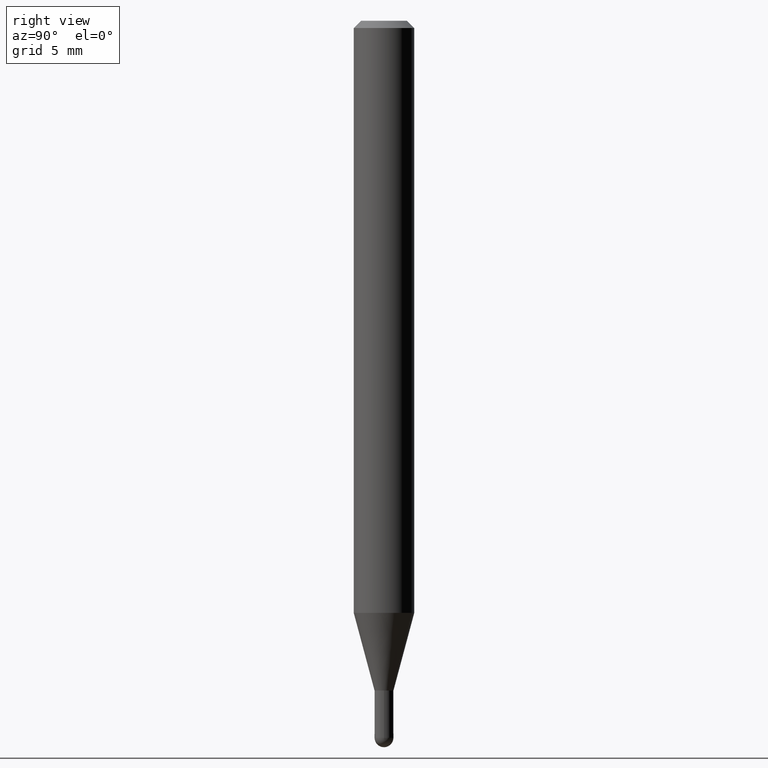
[diagram: clean part render]
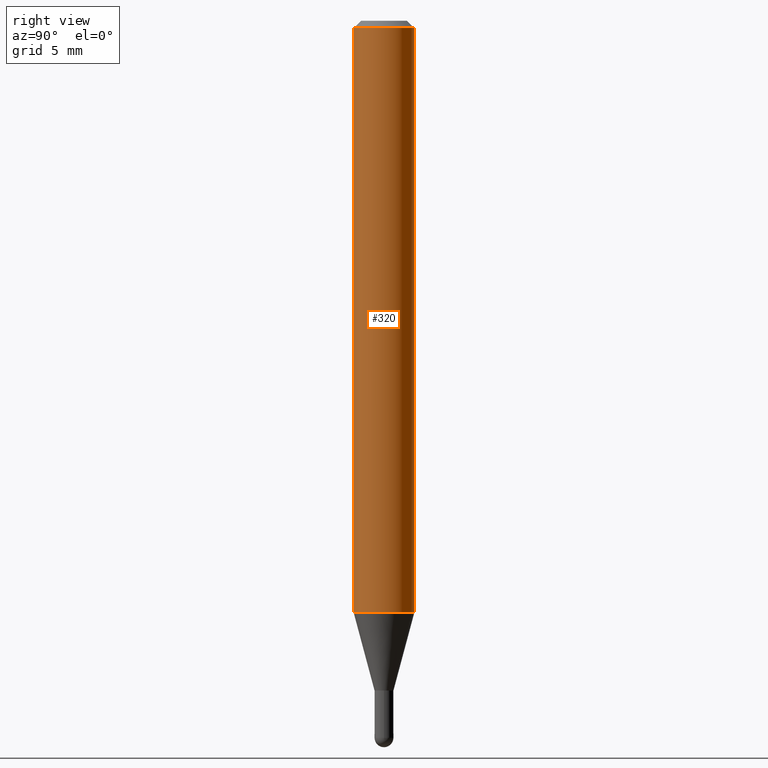
[diagram: same view with one face highlighted and labeled with its STEP entity id]
A machine part, right view. The second image highlights one B-rep face of the part: STEP entity #320.
In plain terms, the highlighted cylindrical surface (edge-blend (fillet) strip) has radius 1.5875 mm, axis along (-0, 0, 1).
Its self-contained STEP definition (entity closure, byte-faithful):
#10 = VECTOR ( 'NONE', #50, 39.37007874015748143 ) ;
#32 = CYLINDRICAL_SURFACE ( 'NONE', #139, 0.06250000000000000000 ) ;
#50 = DIRECTION ( 'NONE',  ( -2.445465756563151398E-29, 3.491485706075402250E-15, 1.000000000000000000 ) ) ;
#61 = DIRECTION ( 'NONE',  ( -6.982962677686265922E-15, -1.000000000000000000, 4.370956789862821150E-15 ) ) ;
#67 = CARTESIAN_POINT ( 'NONE',  ( 4.440892098500925929E-16, 0.06249999999999995143, -0.01500000000000028394 ) ) ;
#69 = FACE_OUTER_BOUND ( 'NONE', #437, .T. ) ;
#74 = LINE ( 'NONE', #506, #421 ) ;
#84 = EDGE_CURVE ( 'NONE', #282, #317, #249, .T. ) ;
#100 = ORIENTED_EDGE ( 'NONE', *, *, #439, .T. ) ;
#102 = DIRECTION ( 'NONE',  ( -6.982962677686265922E-15, -1.000000000000000000, 3.483106191921935554E-15 ) ) ;
#113 = CARTESIAN_POINT ( 'NONE',  ( -4.364351673553912750E-16, -0.06250000000000005551, -0.01499999999999984852 ) ) ;
#114 = ORIENTED_EDGE ( 'NONE', *, *, #84, .F. ) ;
#139 = AXIS2_PLACEMENT_3D ( 'NONE', #471, #224, #349 ) ;
#176 = EDGE_CURVE ( 'NONE', #282, #302, #436, .T. ) ;
#179 = CARTESIAN_POINT ( 'NONE',  ( 2.989635235905315771E-29, -4.268417443396418257E-15, -1.222521815274542289 ) ) ;
#181 = CARTESIAN_POINT ( 'NONE',  ( -4.364351673553618406E-16, -0.06250000000000428824, -1.222521815274542067 ) ) ;
#186 = VERTEX_POINT ( 'NONE', #67 ) ;
#188 = ORIENTED_EDGE ( 'NONE', *, *, #176, .T. ) ;
#192 = CIRCLE ( 'NONE', #482, 0.06250000000000000000 ) ;
#210 = DIRECTION ( 'NONE',  ( -2.445465756563151118E-29, 3.491485706075402250E-15, 1.000000000000000000 ) ) ;
#224 = DIRECTION ( 'NONE',  ( -2.445465756563151118E-29, 3.491485706075402250E-15, 1.000000000000000000 ) ) ;
#231 = ORIENTED_EDGE ( 'NONE', *, *, #248, .F. ) ;
#248 = EDGE_CURVE ( 'NONE', #317, #186, #192, .T. ) ;
#249 = LINE ( 'NONE', #479, #10 ) ;
#258 = CARTESIAN_POINT ( 'NONE',  ( 3.668198634844742967E-31, -5.237228559113126399E-17, -0.01500000000000006710 ) ) ;
#282 = VERTEX_POINT ( 'NONE', #181 ) ;
#298 = AXIS2_PLACEMENT_3D ( 'NONE', #179, #210, #61 ) ;
#302 = VERTEX_POINT ( 'NONE', #465 ) ;
#309 = DIRECTION ( 'NONE',  ( -2.445465756563151118E-29, 3.491485706075402250E-15, 1.000000000000000000 ) ) ;
#317 = VERTEX_POINT ( 'NONE', #113 ) ;
#320 = ADVANCED_FACE ( 'NONE', ( #69 ), #32, .T. ) ;
#349 = DIRECTION ( 'NONE',  ( -6.982962677686265922E-15, -1.000000000000000000, 3.491485706075402250E-15 ) ) ;
#360 = DIRECTION ( 'NONE',  ( -2.445465756563151398E-29, 3.491485706075402250E-15, 1.000000000000000000 ) ) ;
#421 = VECTOR ( 'NONE', #360, 39.37007874015748143 ) ;
#436 = CIRCLE ( 'NONE', #298, 0.06250000000000000000 ) ;
#437 = EDGE_LOOP ( 'NONE', ( #188, #100, #231, #114 ) ) ;
#439 = EDGE_CURVE ( 'NONE', #302, #186, #74, .T. ) ;
#465 = CARTESIAN_POINT ( 'NONE',  ( 4.440892098500921985E-16, 0.06249999999999571176, -1.222521815274542734 ) ) ;
#471 = CARTESIAN_POINT ( 'NONE',  ( 0.000000000000000000, 0.000000000000000000, 0.000000000000000000 ) ) ;
#479 = CARTESIAN_POINT ( 'NONE',  ( -4.364351673553916201E-16, -0.06250000000000000000, 2.182178566297126406E-16 ) ) ;
#482 = AXIS2_PLACEMENT_3D ( 'NONE', #258, #309, #102 ) ;
#506 = CARTESIAN_POINT ( 'NONE',  ( 4.440892098500625669E-16, 0.06250000000000000000, -2.182178566297126406E-16 ) ) ;